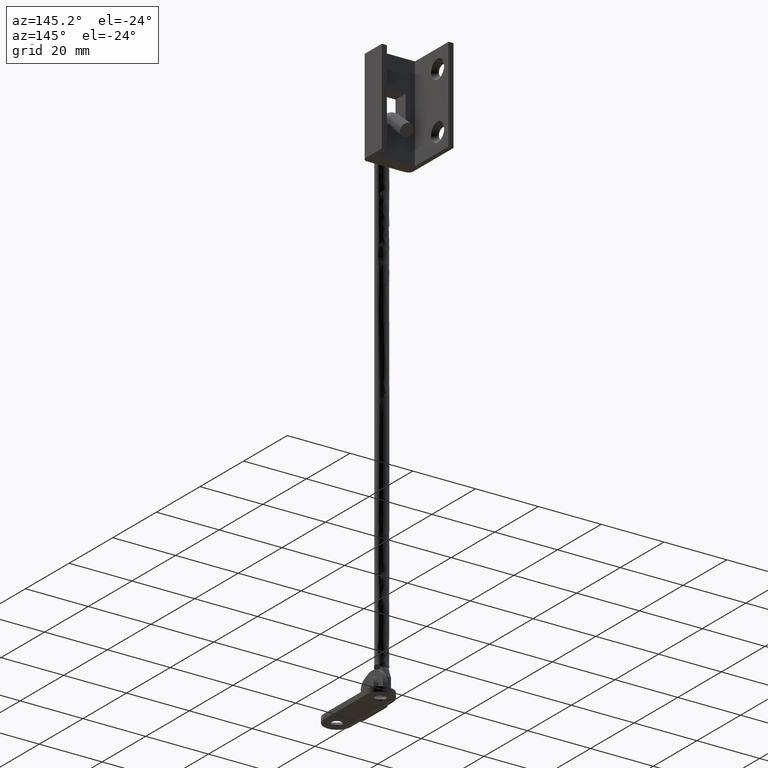
[diagram: clean part render]
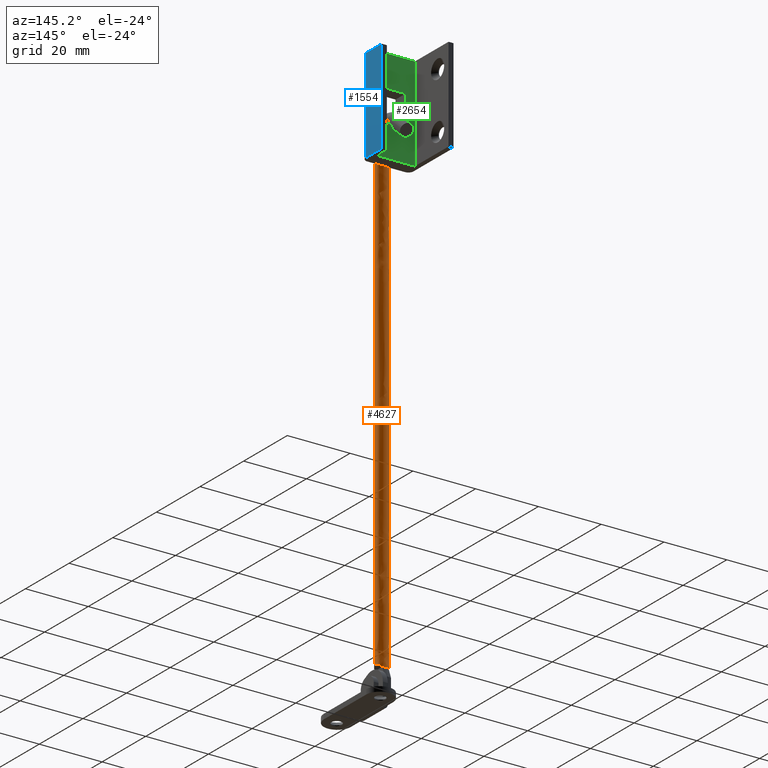
[diagram: same view with three faces highlighted in distinct colors, each labeled with its STEP entity id]
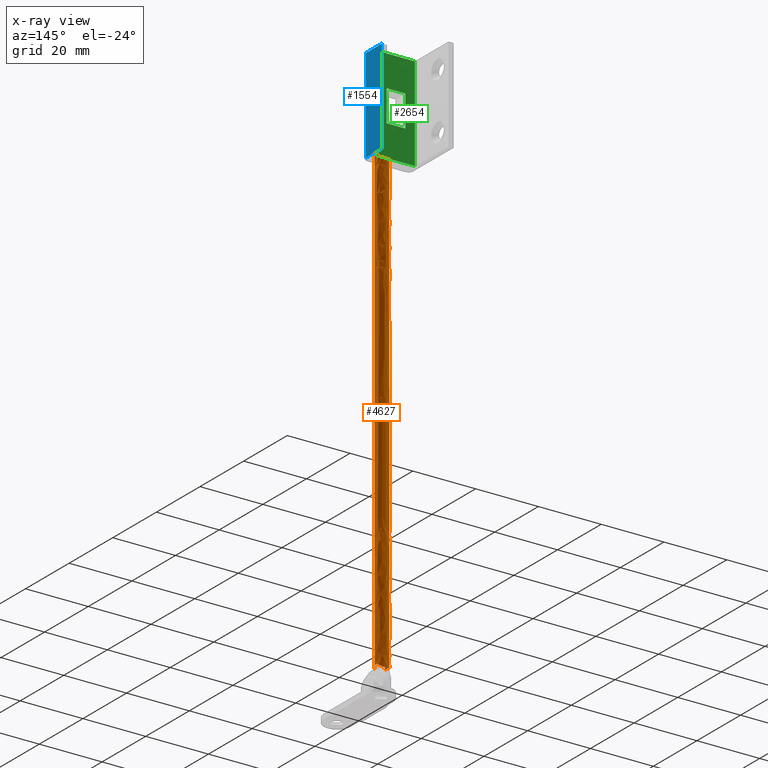
[diagram: x-ray of the same camera — body ghosted, the three highlighted faces saturated]
A machine part, auxiliary view with three faces highlighted in distinct colors.
The next image is the same camera in x-ray (body ghosted, the three faces saturated) — at least one of them is partly hidden behind the body in this view.
Their STEP definitions:

[orange] entity #4627 — the highlighted face is a freeform B-spline surface patch.
#4463=CARTESIAN_POINT('',(-6.009699796964280,-1.437736001354960,9.787498074918586));
#4464=CARTESIAN_POINT('',(-4.877065925545296,-0.342477086312121,9.787498074918588));
#4465=CARTESIAN_POINT('',(-5.676739367580213,1.015084685310224,9.787498074918588));
#4466=CARTESIAN_POINT('',(-6.691824052890437,2.738338317730200,9.787498074918588));
#4467=CARTESIAN_POINT('',(-8.415077685310413,1.723253632419976,9.787498074918588));
#4468=CARTESIAN_POINT('',(-10.138331317730390,0.708168947109752,9.787498074918588));
#4469=CARTESIAN_POINT('',(-9.123246632420166,-1.015084685310224,9.787498074918588));
#4470=CARTESIAN_POINT('',(-6.009699796964280,-1.437736001354969,170.007807426460490));
#4471=CARTESIAN_POINT('',(-4.877065925545296,-0.342477086312131,170.007807426460490));
#4472=CARTESIAN_POINT('',(-5.676739367580213,1.015084685310214,170.007807426460490));
#4473=CARTESIAN_POINT('',(-6.691824052890437,2.738338317730189,170.007807426460460));
#4474=CARTESIAN_POINT('',(-8.415077685310413,1.723253632419966,170.007807426460490));
#4475=CARTESIAN_POINT('',(-10.138331317730390,0.708168947109742,170.007807426460460));
#4476=CARTESIAN_POINT('',(-9.123246632420166,-1.015084685310234,170.007807426460490));
#4484=(BOUNDED_SURFACE()B_SPLINE_SURFACE(2,1,((#4463,#4470),(#4464,#4471),(#4465,#4472),(#4466,#4473),(#4467,#4474),(#4468,#4475),(#4469,#4476)),.UNSPECIFIED.,.F.,.F.,.U.)B_SPLINE_SURFACE_WITH_KNOTS((3,2,2,3),(2,2),(0.0,2.783515139147199,6.097223638131959,9.410932137116719),(0.0,160.220309351541910),.UNSPECIFIED.)GEOMETRIC_REPRESENTATION_ITEM()RATIONAL_B_SPLINE_SURFACE(((0.921270302782944,0.921270302782944),(0.753969696196700,0.753969696196700),(1.0,1.0),(0.707106781186548,0.707106781186548),(1.0,1.0),(0.707106781186548,0.707106781186548),(1.0,1.0)))REPRESENTATION_ITEM('')SURFACE());
#4485=CARTESIAN_POINT('',(-6.009700728052110,-1.437736901717347,166.099995000001510));
#4486=VERTEX_POINT('',#4485);
#4487=CARTESIAN_POINT('',(-5.399993000000189,-8.371883E-015,166.099995000001510));
#4488=VERTEX_POINT('',#4487);
#4489=CARTESIAN_POINT('',(-6.009700728052110,-1.437736901717347,166.099995000001540));
#4490=CARTESIAN_POINT('',(-5.399993000000191,-0.848149236933723,166.099995000001510));
#4491=CARTESIAN_POINT('',(-5.399993000000189,-8.371883E-015,166.099995000001510));
#4499=(BOUNDED_CURVE()B_SPLINE_CURVE(2,(#4489,#4490,#4491),.UNSPECIFIED.,.F.,.U.)B_SPLINE_CURVE_WITH_KNOTS((3,3),(0.372468789145359,0.500000000000000),.UNSPECIFIED.)CURVE()GEOMETRIC_REPRESENTATION_ITEM()RATIONAL_B_SPLINE_CURVE((0.853613440998662,0.850587892614429,1.0))REPRESENTATION_ITEM(''));
#4500=EDGE_CURVE('',#4486,#4488,#4499,.T.);
#4501=ORIENTED_EDGE('',*,*,#4500,.F.);
#4502=CARTESIAN_POINT('',(-6.009699796439448,-1.437736000847461,13.990283204165690));
#4503=VERTEX_POINT('',#4502);
#4504=CARTESIAN_POINT('',(-6.009699796439448,-1.437736000847461,13.990283204165690));
#4505=CARTESIAN_POINT('',(-6.009700728052110,-1.437736901717347,166.099995000001510));
#4506=QUASI_UNIFORM_CURVE('',1,(#4504,#4505),.UNSPECIFIED.,.F.,.U.);
#4507=EDGE_CURVE('',#4503,#4486,#4506,.T.);
#4508=ORIENTED_EDGE('',*,*,#4507,.F.);
#4509=CARTESIAN_POINT('',(-6.399985000000391,1.732046188742455,13.599997999999900));
#4510=VERTEX_POINT('',#4509);
#4511=CARTESIAN_POINT('',(-6.399985000000391,1.732046188742455,13.599997999999900));
#4512=CARTESIAN_POINT('',(-5.399993000000189,1.154694379976496,14.599989999999996));
#4513=CARTESIAN_POINT('',(-5.399993000000189,-4.759410E-014,14.599990000000000));
#4514=CARTESIAN_POINT('',(-5.399993000000190,-0.848148472000850,14.599989999999996));
#4515=CARTESIAN_POINT('',(-6.009699796439448,-1.437736000847461,13.990283204165696));
#4523=(BOUNDED_CURVE()B_SPLINE_CURVE(2,(#4511,#4512,#4513,#4514,#4515),.UNSPECIFIED.,.F.,.U.)B_SPLINE_CURVE_WITH_KNOTS((3,2,3),(0.0,0.500000000000000,0.880805114123539),.UNSPECIFIED.)CURVE()GEOMETRIC_REPRESENTATION_ITEM()RATIONAL_B_SPLINE_CURVE((1.0,0.866026558484223,1.0,0.897964456628123,0.951351540209786))REPRESENTATION_ITEM(''));
#4524=EDGE_CURVE('',#4510,#4503,#4523,.T.);
#4525=ORIENTED_EDGE('',*,*,#4524,.F.);
#4526=CARTESIAN_POINT('',(-8.400001000000001,1.732046188742260,13.599997999999900));
#4527=VERTEX_POINT('',#4526);
#4528=CARTESIAN_POINT('',(-8.400001000000001,1.732046188742260,13.599997999999900));
#4529=CARTESIAN_POINT('',(-7.399993000000253,2.309407235210440,13.599997999999900));
#4530=CARTESIAN_POINT('',(-6.399985000000391,1.732046188742455,13.599997999999900));
#4538=(BOUNDED_CURVE()B_SPLINE_CURVE(2,(#4528,#4529,#4530),.UNSPECIFIED.,.F.,.U.)CURVE()GEOMETRIC_REPRESENTATION_ITEM()QUASI_UNIFORM_CURVE()RATIONAL_B_SPLINE_CURVE((1.0,0.866023094371121,1.0))REPRESENTATION_ITEM(''));
#4539=EDGE_CURVE('',#4527,#4510,#4538,.T.);
#4540=ORIENTED_EDGE('',*,*,#4539,.F.);
#4541=CARTESIAN_POINT('',(-9.123246632440694,-1.015084685275298,14.323243632461161));
#4542=VERTEX_POINT('',#4541);
#4543=CARTESIAN_POINT('',(-9.123246632440694,-1.015084685275298,14.323243632461162));
#4544=CARTESIAN_POINT('',(-9.399993000000258,-0.545267545777789,14.599990000000066));
#4545=CARTESIAN_POINT('',(-9.399993000000190,2.480778E-013,14.599990000000000));
#4546=CARTESIAN_POINT('',(-9.399993000000048,1.154694379976688,14.599989999999861));
#4547=CARTESIAN_POINT('',(-8.400001000000001,1.732046188742260,13.599997999999900));
#4555=(BOUNDED_CURVE()B_SPLINE_CURVE(2,(#4543,#4544,#4545,#4546,#4547),.UNSPECIFIED.,.F.,.U.)B_SPLINE_CURVE_WITH_KNOTS((3,2,3),(0.245925687345230,0.500000000000000,1.0),.UNSPECIFIED.)CURVE()GEOMETRIC_REPRESENTATION_ITEM()RATIONAL_B_SPLINE_CURVE((0.933031070940435,0.931921579865757,1.0,0.866026558484197,1.0))REPRESENTATION_ITEM(''));
#4556=EDGE_CURVE('',#4542,#4527,#4555,.T.);
#4557=ORIENTED_EDGE('',*,*,#4556,.F.);
#4558=CARTESIAN_POINT('',(-9.123246632388550,-1.015084685363907,166.099995000001510));
#4559=VERTEX_POINT('',#4558);
#4560=CARTESIAN_POINT('',(-9.123246632440694,-1.015084685275298,14.323243632461161));
#4561=CARTESIAN_POINT('',(-9.123246632388550,-1.015084685363907,166.099995000001510));
#4562=QUASI_UNIFORM_CURVE('',1,(#4560,#4561),.UNSPECIFIED.,.F.,.U.);
#4563=EDGE_CURVE('',#4542,#4559,#4562,.T.);
#4564=ORIENTED_EDGE('',*,*,#4563,.T.);
#4565=CARTESIAN_POINT('',(-9.399993000000190,-8.371883E-015,166.099995000001510));
#4566=VERTEX_POINT('',#4565);
#4567=CARTESIAN_POINT('',(-9.399993000000190,-8.371883E-015,166.099995000001510));
#4568=CARTESIAN_POINT('',(-9.399993000000190,-0.545267545888385,166.099995000001480));
#4569=CARTESIAN_POINT('',(-9.123246632388550,-1.015084685363907,166.099995000001510));
#4577=(BOUNDED_CURVE()B_SPLINE_CURVE(2,(#4567,#4568,#4569),.UNSPECIFIED.,.F.,.U.)B_SPLINE_CURVE_WITH_KNOTS((3,3),(0.0,0.086609863622664),.UNSPECIFIED.)CURVE()GEOMETRIC_REPRESENTATION_ITEM()RATIONAL_B_SPLINE_CURVE((1.0,0.898530233050255,0.867366727519237))REPRESENTATION_ITEM(''));
#4578=EDGE_CURVE('',#4566,#4559,#4577,.T.);
#4579=ORIENTED_EDGE('',*,*,#4578,.F.);
#4580=CARTESIAN_POINT('',(-8.941019485289056,1.274847979814936,166.099995003252100));
#4581=VERTEX_POINT('',#4580);
#4582=CARTESIAN_POINT('',(-8.941019485289056,1.274847979814936,166.099995003252100));
#4583=CARTESIAN_POINT('',(-9.399993000000190,0.720044306657074,166.099995000001540));
#4584=CARTESIAN_POINT('',(-9.399993000000190,-8.371883E-015,166.099995000001510));
#4592=(BOUNDED_CURVE()B_SPLINE_CURVE(2,(#4582,#4583,#4584),.UNSPECIFIED.,.F.,.U.)B_SPLINE_CURVE_WITH_KNOTS((3,3),(0.889231427624185,1.0),.UNSPECIFIED.)CURVE()GEOMETRIC_REPRESENTATION_ITEM()RATIONAL_B_SPLINE_CURVE((0.855451652934723,0.870226545173907,1.0))REPRESENTATION_ITEM(''));
#4593=EDGE_CURVE('',#4581,#4566,#4592,.T.);
#4594=ORIENTED_EDGE('',*,*,#4593,.F.);
#4595=CARTESIAN_POINT('',(-6.413680503771225,1.739881507397144,166.099995002893110));
#4596=VERTEX_POINT('',#4595);
#4597=CARTESIAN_POINT('',(-6.413680503771225,1.739881507397144,166.099995002893080));
#4598=CARTESIAN_POINT('',(-6.872536449997165,1.999999999999991,166.099995000001510));
#4599=CARTESIAN_POINT('',(-7.399993000000189,1.999999999999992,166.099995000001510));
#4600=CARTESIAN_POINT('',(-8.341121561921282,1.999999999999992,166.099995000001540));
#4601=CARTESIAN_POINT('',(-8.941019485289056,1.274847979814936,166.099995003252130));
#4609=(BOUNDED_CURVE()B_SPLINE_CURVE(2,(#4597,#4598,#4599,#4600,#4601),.UNSPECIFIED.,.F.,.U.)B_SPLINE_CURVE_WITH_KNOTS((3,2,3),(0.665940607752876,0.750000000000000,0.889231427624185),.UNSPECIFIED.)CURVE()GEOMETRIC_REPRESENTATION_ITEM()RATIONAL_B_SPLINE_CURVE((0.869263089662102,0.901518296132949,1.0,0.836880236012641,0.855451652934723))REPRESENTATION_ITEM(''));
#4610=EDGE_CURVE('',#4596,#4581,#4609,.T.);
#4611=ORIENTED_EDGE('',*,*,#4610,.F.);
#4612=CARTESIAN_POINT('',(-5.399993000000189,-8.371883E-015,166.099995000001510));
#4613=CARTESIAN_POINT('',(-5.399993000000190,1.165237400417577,166.099995000001480));
#4614=CARTESIAN_POINT('',(-6.413680503771224,1.739881507397144,166.099995002893140));
#4622=(BOUNDED_CURVE()B_SPLINE_CURVE(2,(#4612,#4613,#4614),.UNSPECIFIED.,.F.,.U.)B_SPLINE_CURVE_WITH_KNOTS((3,3),(0.500000000000000,0.665940607752875),.UNSPECIFIED.)CURVE()GEOMETRIC_REPRESENTATION_ITEM()RATIONAL_B_SPLINE_CURVE((1.0,0.805588485053600,0.869263089662101))REPRESENTATION_ITEM(''));
#4623=EDGE_CURVE('',#4488,#4596,#4622,.T.);
#4624=ORIENTED_EDGE('',*,*,#4623,.F.);
#4625=EDGE_LOOP('',(#4501,#4508,#4525,#4540,#4557,#4564,#4579,#4594,#4611,#4624));
#4626=FACE_OUTER_BOUND('',#4625,.T.);
#4627=ADVANCED_FACE('',(#4626),#4484,.T.);

[blue] entity #1554 — the highlighted face is a freeform B-spline surface patch.
#1256=CARTESIAN_POINT('',(0.199996999999996,3.600000000000000,156.930137000000000));
#1257=VERTEX_POINT('',#1256);
#1273=CARTESIAN_POINT('',(0.199996999999996,3.600000000000000,186.930137000000000));
#1274=VERTEX_POINT('',#1273);
#1275=CARTESIAN_POINT('',(0.199996999999996,3.600000000000000,186.930137000000000));
#1276=CARTESIAN_POINT('',(0.199996999999996,3.600000000000000,156.930137000000000));
#1277=QUASI_UNIFORM_CURVE('',1,(#1275,#1276),.UNSPECIFIED.,.F.,.U.);
#1278=EDGE_CURVE('',#1274,#1257,#1277,.T.);
#1426=CARTESIAN_POINT('',(0.199996999999995,11.0,186.930137000000000));
#1427=VERTEX_POINT('',#1426);
#1428=CARTESIAN_POINT('',(0.199996999999995,11.0,186.930137000000000));
#1429=CARTESIAN_POINT('',(0.199996999999996,3.600000000000000,186.930137000000000));
#1430=QUASI_UNIFORM_CURVE('',1,(#1428,#1429),.UNSPECIFIED.,.F.,.U.);
#1431=EDGE_CURVE('',#1427,#1274,#1430,.T.);
#1482=CARTESIAN_POINT('',(0.199996999999995,11.0,156.930137000000000));
#1483=VERTEX_POINT('',#1482);
#1484=CARTESIAN_POINT('',(0.199996999999995,11.0,156.930137000000000));
#1485=CARTESIAN_POINT('',(0.199996999999996,3.600000000000000,156.930137000000000));
#1486=QUASI_UNIFORM_CURVE('',1,(#1484,#1485),.UNSPECIFIED.,.F.,.U.);
#1487=EDGE_CURVE('',#1483,#1257,#1486,.T.);
#1539=CARTESIAN_POINT('',(0.199996999999995,11.369629985657360,155.431630164788200));
#1540=CARTESIAN_POINT('',(0.199996999999995,3.230369815859170,155.431630164788200));
#1541=CARTESIAN_POINT('',(0.199996999999995,11.369629985657360,188.428629083062300));
#1542=CARTESIAN_POINT('',(0.199996999999995,3.230369815859170,188.428629083062300));
#1543=B_SPLINE_SURFACE_WITH_KNOTS('',1,1,((#1539,#1541),(#1540,#1542)),.UNSPECIFIED.,.F.,.F.,.U.,(2,2),(2,2),(0.0,8.139260169798192),(0.0,32.996998918274073),.UNSPECIFIED.);
#1544=ORIENTED_EDGE('',*,*,#1431,.T.);
#1545=ORIENTED_EDGE('',*,*,#1278,.T.);
#1546=ORIENTED_EDGE('',*,*,#1487,.F.);
#1547=CARTESIAN_POINT('',(0.199996999999995,11.0,156.930137000000000));
#1548=CARTESIAN_POINT('',(0.199996999999995,11.0,186.930137000000000));
#1549=QUASI_UNIFORM_CURVE('',1,(#1547,#1548),.UNSPECIFIED.,.F.,.U.);
#1550=EDGE_CURVE('',#1483,#1427,#1549,.T.);
#1551=ORIENTED_EDGE('',*,*,#1550,.T.);
#1552=EDGE_LOOP('',(#1544,#1545,#1546,#1551));
#1553=FACE_OUTER_BOUND('',#1552,.T.);
#1554=ADVANCED_FACE('',(#1553),#1543,.F.);

[green] entity #2654 — the highlighted face is a freeform B-spline surface patch.
#2409=CARTESIAN_POINT('',(-4.399993000000195,6.599975999999909,166.930137000000000));
#2410=VERTEX_POINT('',#2409);
#2416=CARTESIAN_POINT('',(-10.400001000000000,6.599976000000000,166.930137000000000));
#2417=VERTEX_POINT('',#2416);
#2418=CARTESIAN_POINT('',(-4.399993000000195,6.599975999999909,166.930137000000000));
#2419=CARTESIAN_POINT('',(-10.400001000000000,6.599976000000000,166.930137000000000));
#2420=QUASI_UNIFORM_CURVE('',1,(#2418,#2419),.UNSPECIFIED.,.F.,.U.);
#2421=EDGE_CURVE('',#2410,#2417,#2420,.T.);
#2443=CARTESIAN_POINT('',(-4.399993000000195,6.599976000000000,176.930137000000000));
#2444=VERTEX_POINT('',#2443);
#2450=CARTESIAN_POINT('',(-4.399993000000195,6.599976000000000,176.930137000000000));
#2451=CARTESIAN_POINT('',(-4.399993000000195,6.599975999999909,166.930137000000000));
#2452=QUASI_UNIFORM_CURVE('',1,(#2450,#2451),.UNSPECIFIED.,.F.,.U.);
#2453=EDGE_CURVE('',#2444,#2410,#2452,.T.);
#2471=CARTESIAN_POINT('',(-10.400001000000000,6.599976000000000,176.930137000000000));
#2472=VERTEX_POINT('',#2471);
#2478=CARTESIAN_POINT('',(-10.400001000000000,6.599976000000000,176.930137000000000));
#2479=CARTESIAN_POINT('',(-4.399993000000195,6.599976000000000,176.930137000000000));
#2480=QUASI_UNIFORM_CURVE('',1,(#2478,#2479),.UNSPECIFIED.,.F.,.U.);
#2481=EDGE_CURVE('',#2472,#2444,#2480,.T.);
#2498=CARTESIAN_POINT('',(-10.400001000000000,6.599976000000000,166.930137000000000));
#2499=CARTESIAN_POINT('',(-10.400001000000000,6.599976000000000,176.930137000000000));
#2500=QUASI_UNIFORM_CURVE('',1,(#2498,#2499),.UNSPECIFIED.,.F.,.U.);
#2501=EDGE_CURVE('',#2417,#2472,#2500,.T.);
#2514=CARTESIAN_POINT('',(-1.399993000000194,6.599975999999909,186.930137000000000));
#2515=VERTEX_POINT('',#2514);
#2521=CARTESIAN_POINT('',(-13.400001000000000,6.599975999999909,186.930137000000000));
#2522=VERTEX_POINT('',#2521);
#2523=CARTESIAN_POINT('',(-1.399993000000194,6.599975999999909,186.930137000000000));
#2524=CARTESIAN_POINT('',(-13.400001000000000,6.599975999999909,186.930137000000000));
#2525=QUASI_UNIFORM_CURVE('',1,(#2523,#2524),.UNSPECIFIED.,.F.,.U.);
#2526=EDGE_CURVE('',#2515,#2522,#2525,.T.);
#2550=CARTESIAN_POINT('',(-1.399993000000194,6.599975999999909,156.930137000000000));
#2551=VERTEX_POINT('',#2550);
#2564=CARTESIAN_POINT('',(-13.400001000000000,6.599975999999909,156.930137000000000));
#2565=VERTEX_POINT('',#2564);
#2571=CARTESIAN_POINT('',(-1.399993000000194,6.599975999999909,156.930137000000000));
#2572=CARTESIAN_POINT('',(-13.400001000000000,6.599975999999909,156.930137000000000));
#2573=QUASI_UNIFORM_CURVE('',1,(#2571,#2572),.UNSPECIFIED.,.F.,.U.);
#2574=EDGE_CURVE('',#2551,#2565,#2573,.T.);
#2585=CARTESIAN_POINT('',(-13.400001000000000,6.599975999999909,156.930137000000000));
#2586=CARTESIAN_POINT('',(-13.400001000000000,6.599975999999909,186.930137000000000));
#2587=QUASI_UNIFORM_CURVE('',1,(#2585,#2586),.UNSPECIFIED.,.F.,.U.);
#2588=EDGE_CURVE('',#2565,#2522,#2587,.T.);
#2611=CARTESIAN_POINT('',(-1.399993000000194,6.599975999999909,156.930137000000000));
#2612=CARTESIAN_POINT('',(-1.399993000000194,6.599975999999909,186.930137000000000));
#2613=QUASI_UNIFORM_CURVE('',1,(#2611,#2612),.UNSPECIFIED.,.F.,.U.);
#2614=EDGE_CURVE('',#2551,#2515,#2613,.T.);
#2637=CARTESIAN_POINT('',(-13.999400925751690,6.599975999999909,155.431630164788200));
#2638=CARTESIAN_POINT('',(-13.999400925751690,6.599975999999909,188.428629083062300));
#2639=CARTESIAN_POINT('',(-0.800592323229481,6.599975999999909,155.431630164788200));
#2640=CARTESIAN_POINT('',(-0.800592323229481,6.599975999999909,188.428629083062300));
#2641=B_SPLINE_SURFACE_WITH_KNOTS('',1,1,((#2637,#2639),(#2638,#2640)),.UNSPECIFIED.,.F.,.F.,.U.,(2,2),(2,2),(0.0,32.996998918274073),(0.0,13.198808602522210),.UNSPECIFIED.);
#2642=ORIENTED_EDGE('',*,*,#2526,.F.);
#2643=ORIENTED_EDGE('',*,*,#2614,.F.);
#2644=ORIENTED_EDGE('',*,*,#2574,.T.);
#2645=ORIENTED_EDGE('',*,*,#2588,.T.);
#2646=EDGE_LOOP('',(#2642,#2643,#2644,#2645));
#2647=FACE_OUTER_BOUND('',#2646,.T.);
#2648=ORIENTED_EDGE('',*,*,#2481,.F.);
#2649=ORIENTED_EDGE('',*,*,#2501,.F.);
#2650=ORIENTED_EDGE('',*,*,#2421,.F.);
#2651=ORIENTED_EDGE('',*,*,#2453,.F.);
#2652=EDGE_LOOP('',(#2648,#2649,#2650,#2651));
#2653=FACE_BOUND('',#2652,.T.);
#2654=ADVANCED_FACE('',(#2647,#2653),#2641,.T.);